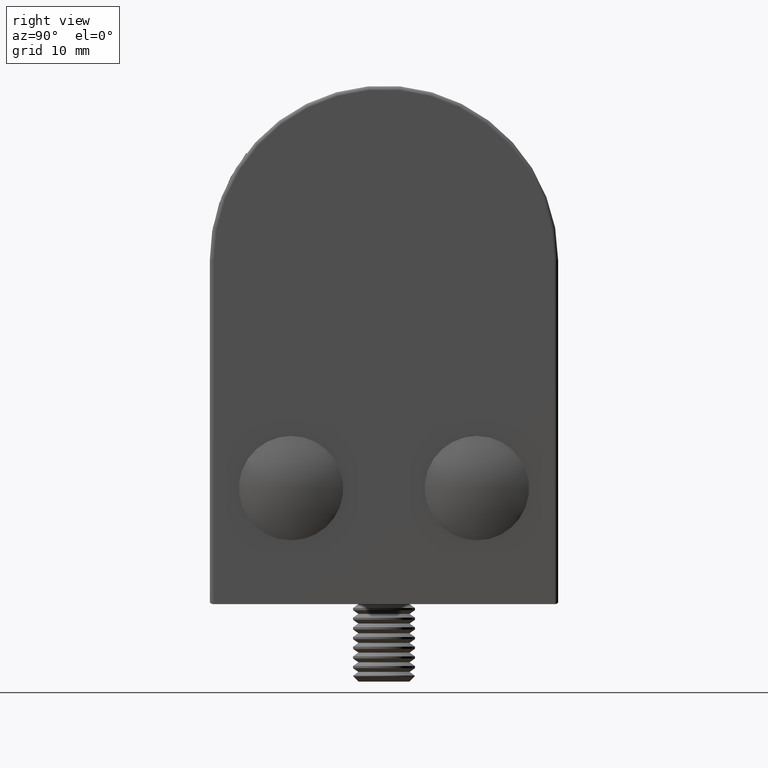
[diagram: clean part render]
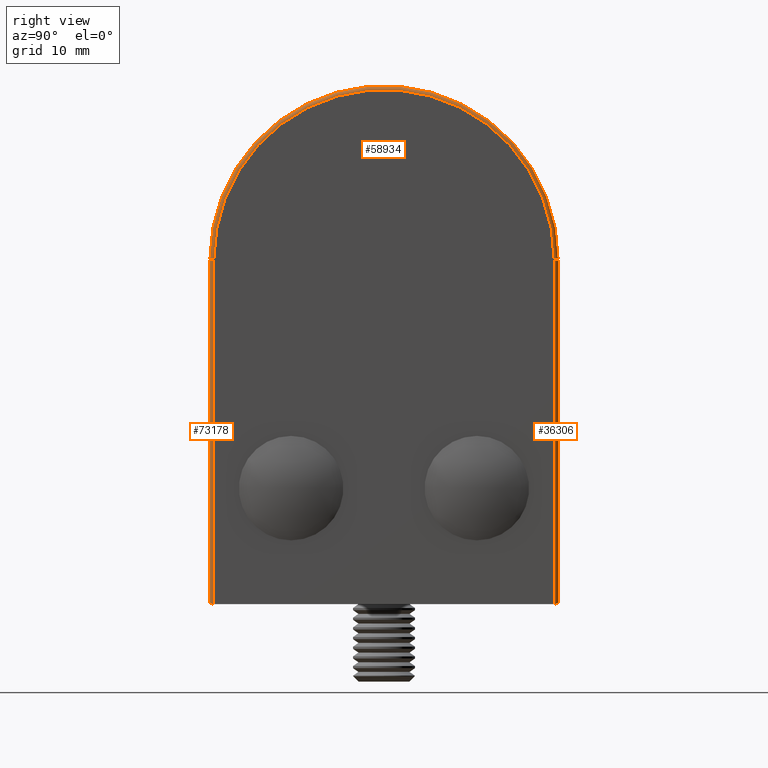
[diagram: same view with one multi-face feature highlighted, each face labeled with its STEP entity id]
A machine part, right view. The highlighted faces form ONE feature: a constant-radius fillet chain: 3 tangent blend faces with common blend radius 0.5 mm. The faces share edges in the B-rep.
Their STEP definitions:
[1] entity #58934 (Torus):
#3281 = DIRECTION ( 'NONE',  ( 0.000000000000000000, 8.881784197001252323E-16, -1.000000000000000000 ) ) ;
#12801 = CARTESIAN_POINT ( 'NONE',  ( 0.5000000000000000000, 21.99999999999998934, 40.49999999999999289 ) ) ;
#15209 = CARTESIAN_POINT ( 'NONE',  ( 0.000000000000000000, -1.387778780781445676E-14, 40.49999999999999289 ) ) ;
#16194 = DIRECTION ( 'NONE',  ( 0.000000000000000000, 0.000000000000000000, -1.000000000000000000 ) ) ;
#17189 = DIRECTION ( 'NONE',  ( 1.000000000000000000, 0.000000000000000000, 0.000000000000000000 ) ) ;
#19416 = CIRCLE ( 'NONE', #55849, 22.00000000000000355 ) ;
#19805 = EDGE_CURVE ( 'NONE', #50431, #64003, #19416, .T. ) ;
#23948 = EDGE_LOOP ( 'NONE', ( #50693, #28853, #25421, #58542 ) ) ;
#25421 = ORIENTED_EDGE ( 'NONE', *, *, #26275, .F. ) ;
#26275 = EDGE_CURVE ( 'NONE', #64003, #74054, #73946, .T. ) ;
#27460 = FACE_OUTER_BOUND ( 'NONE', #23948, .T. ) ;
#27980 = DIRECTION ( 'NONE',  ( -1.000000000000000000, -0.000000000000000000, -0.000000000000000000 ) ) ;
#28853 = ORIENTED_EDGE ( 'NONE', *, *, #41756, .F. ) ;
#30552 = CARTESIAN_POINT ( 'NONE',  ( 0.5000000000000000000, -22.00000000000000000, 40.50000000000000000 ) ) ;
#37223 = CARTESIAN_POINT ( 'NONE',  ( 0.5000000000000004441, 22.50000000000000711, 40.49999999999999289 ) ) ;
#41756 = EDGE_CURVE ( 'NONE', #74054, #67227, #47270, .T. ) ;
#42271 = CARTESIAN_POINT ( 'NONE',  ( 0.5000000000000004441, -1.387778780781445676E-14, 40.49999999999999289 ) ) ;
#43331 = DIRECTION ( 'NONE',  ( 0.000000000000000000, 0.000000000000000000, 1.000000000000000000 ) ) ;
#43956 = DIRECTION ( 'NONE',  ( 0.000000000000000000, 0.000000000000000000, -1.000000000000000000 ) ) ;
#44523 = CARTESIAN_POINT ( 'NONE',  ( 0.5000000000000004441, -1.387778780781445676E-14, 40.49999999999999289 ) ) ;
#47270 = CIRCLE ( 'NONE', #71349, 22.50000000000000355 ) ;
#47629 = CARTESIAN_POINT ( 'NONE',  ( 0.000000000000000000, -22.00000000000001776, 40.50000000000000000 ) ) ;
#50431 = VERTEX_POINT ( 'NONE', #47629 ) ;
#50693 = ORIENTED_EDGE ( 'NONE', *, *, #66517, .T. ) ;
#50898 = DIRECTION ( 'NONE',  ( 1.000000000000000000, 0.000000000000000000, 0.000000000000000000 ) ) ;
#51863 = AXIS2_PLACEMENT_3D ( 'NONE', #42271, #54307, #16194 ) ;
#54307 = DIRECTION ( 'NONE',  ( 1.000000000000000000, 0.000000000000000000, 0.000000000000000000 ) ) ;
#55849 = AXIS2_PLACEMENT_3D ( 'NONE', #15209, #27980, #3281 ) ;
#58542 = ORIENTED_EDGE ( 'NONE', *, *, #19805, .F. ) ;
#58934 = ADVANCED_FACE ( 'NONE', ( #27460 ), #69235, .T. ) ;
#60999 = CIRCLE ( 'NONE', #69124, 0.5000000000000000000 ) ;
#61312 = CARTESIAN_POINT ( 'NONE',  ( 0.000000000000000000, 21.99999999999998934, 40.49999999999999289 ) ) ;
#63871 = DIRECTION ( 'NONE',  ( -1.000000000000000000, 0.000000000000000000, 0.000000000000000000 ) ) ;
#64003 = VERTEX_POINT ( 'NONE', #61312 ) ;
#66517 = EDGE_CURVE ( 'NONE', #50431, #67227, #60999, .T. ) ;
#66594 = AXIS2_PLACEMENT_3D ( 'NONE', #12801, #76325, #63871 ) ;
#67227 = VERTEX_POINT ( 'NONE', #67303 ) ;
#67303 = CARTESIAN_POINT ( 'NONE',  ( 0.5000000000000004441, -22.50000000000001776, 40.50000000000000000 ) ) ;
#69124 = AXIS2_PLACEMENT_3D ( 'NONE', #30552, #43331, #17189 ) ;
#69235 = TOROIDAL_SURFACE ( 'NONE', #51863, 22.00000000000000355, 0.5000000000000000000 ) ;
#71349 = AXIS2_PLACEMENT_3D ( 'NONE', #44523, #50898, #43956 ) ;
#73946 = CIRCLE ( 'NONE', #66594, 0.5000000000000000000 ) ;
#74054 = VERTEX_POINT ( 'NONE', #37223 ) ;
#76325 = DIRECTION ( 'NONE',  ( 0.000000000000000000, 0.000000000000000000, -1.000000000000000000 ) ) ;
[2] entity #73178 (Cylinder):
#3568 = VECTOR ( 'NONE', #23610, 1000.000000000000000 ) ;
#3742 = CARTESIAN_POINT ( 'NONE',  ( 4.336808689942017736E-16, 21.99999999999998224, -3.996176187792348067 ) ) ;
#4706 = ORIENTED_EDGE ( 'NONE', *, *, #26275, .T. ) ;
#4941 = EDGE_CURVE ( 'NONE', #18991, #17120, #80340, .T. ) ;
#8092 = CARTESIAN_POINT ( 'NONE',  ( 0.06351769917607848204, 22.27632803924383254, -3.959622569378996371 ) ) ;
#11291 = VECTOR ( 'NONE', #48020, 1000.000000000000000 ) ;
#12801 = CARTESIAN_POINT ( 'NONE',  ( 0.5000000000000000000, 21.99999999999998934, 40.49999999999999289 ) ) ;
#12914 = AXIS2_PLACEMENT_3D ( 'NONE', #73443, #17137, #54688 ) ;
#16860 = EDGE_CURVE ( 'NONE', #17120, #74054, #61047, .T. ) ;
#17120 = VERTEX_POINT ( 'NONE', #30452 ) ;
#17137 = DIRECTION ( 'NONE',  ( -0.000000000000000000, 1.713307136767217096E-16, 1.000000000000000000 ) ) ;
#18991 = VERTEX_POINT ( 'NONE', #3742 ) ;
#19055 = FACE_OUTER_BOUND ( 'NONE', #32922, .T. ) ;
#20303 = ORIENTED_EDGE ( 'NONE', *, *, #64894, .F. ) ;
#22103 = CARTESIAN_POINT ( 'NONE',  ( 0.5000000000000004441, 22.50000000000000000, 0.000000000000000000 ) ) ;
#23610 = DIRECTION ( 'NONE',  ( 0.000000000000000000, -1.713307136767217096E-16, -1.000000000000000000 ) ) ;
#26275 = EDGE_CURVE ( 'NONE', #64003, #74054, #73946, .T. ) ;
#26532 = CARTESIAN_POINT ( 'NONE',  ( -4.310974185050759998E-15, 22.14203512808349927, -3.996176187792350731 ) ) ;
#30452 = CARTESIAN_POINT ( 'NONE',  ( 0.5000000000000004441, 22.50000000000001066, -3.715694637460208227 ) ) ;
#32922 = EDGE_LOOP ( 'NONE', ( #35796, #20303, #4706, #77477 ) ) ;
#35796 = ORIENTED_EDGE ( 'NONE', *, *, #4941, .F. ) ;
#36887 = CYLINDRICAL_SURFACE ( 'NONE', #12914, 0.5000000000000004441 ) ;
#37223 = CARTESIAN_POINT ( 'NONE',  ( 0.5000000000000004441, 22.50000000000000711, 40.49999999999999289 ) ) ;
#38712 = CARTESIAN_POINT ( 'NONE',  ( 0.5000000000000004441, 22.50000000000001066, -3.715694637460208227 ) ) ;
#38961 = CARTESIAN_POINT ( 'NONE',  ( 0.2532153795702816734, 22.45384064970453508, -3.852343890759658329 ) ) ;
#48020 = DIRECTION ( 'NONE',  ( -0.000000000000000000, 1.713307136767217096E-16, 1.000000000000000000 ) ) ;
#48926 = CARTESIAN_POINT ( 'NONE',  ( 0.000000000000000000, 22.00000000000000711, 40.49999999999998579 ) ) ;
#54688 = DIRECTION ( 'NONE',  ( 0.000000000000000000, -1.000000000000000000, 1.713307136767215617E-16 ) ) ;
#61047 = LINE ( 'NONE', #22103, #11291 ) ;
#61169 = LINE ( 'NONE', #48926, #3568 ) ;
#61312 = CARTESIAN_POINT ( 'NONE',  ( 0.000000000000000000, 21.99999999999998934, 40.49999999999999289 ) ) ;
#63871 = DIRECTION ( 'NONE',  ( -1.000000000000000000, 0.000000000000000000, 0.000000000000000000 ) ) ;
#64003 = VERTEX_POINT ( 'NONE', #61312 ) ;
#64799 = CARTESIAN_POINT ( 'NONE',  ( 4.336808689942017736E-16, 21.99999999999998224, -3.996176187792348067 ) ) ;
#64894 = EDGE_CURVE ( 'NONE', #64003, #18991, #61169, .T. ) ;
#66594 = AXIS2_PLACEMENT_3D ( 'NONE', #12801, #76325, #63871 ) ;
#73178 = ADVANCED_FACE ( 'NONE', ( #19055 ), #36887, .T. ) ;
#73443 = CARTESIAN_POINT ( 'NONE',  ( 0.5000000000000004441, 22.00000000000000000, 8.566535683836085482E-17 ) ) ;
#73946 = CIRCLE ( 'NONE', #66594, 0.5000000000000000000 ) ;
#74054 = VERTEX_POINT ( 'NONE', #37223 ) ;
#76325 = DIRECTION ( 'NONE',  ( 0.000000000000000000, 0.000000000000000000, -1.000000000000000000 ) ) ;
#77257 = CARTESIAN_POINT ( 'NONE',  ( 0.3758805443993050166, 22.49999999999999645, -3.783777837738302008 ) ) ;
#77477 = ORIENTED_EDGE ( 'NONE', *, *, #16860, .F. ) ;
#80340 = B_SPLINE_CURVE_WITH_KNOTS ( 'NONE', 3,
 ( #64799, #26532, #8092, #38961, #77257, #38712 ),
 .UNSPECIFIED., .F., .F.,
 ( 4, 2, 4 ),
 ( 0.000000000000000000, 0.0004196310551618273165, 0.0008392621103236540909 ),
 .UNSPECIFIED. ) ;
[3] entity #36306 (Cylinder):
#1982 = CARTESIAN_POINT ( 'NONE',  ( 4.573977915173220845E-16, -22.07127594295869599, -3.996176187792345846 ) ) ;
#4095 = ORIENTED_EDGE ( 'NONE', *, *, #44860, .F. ) ;
#9123 = CARTESIAN_POINT ( 'NONE',  ( 0.5000000000000004441, -22.50000000000001776, -3.715694637460208227 ) ) ;
#9542 = ORIENTED_EDGE ( 'NONE', *, *, #59273, .F. ) ;
#13840 = CARTESIAN_POINT ( 'NONE',  ( 0.5000000000000004441, -22.50000000000000000, 0.000000000000000000 ) ) ;
#14539 = ORIENTED_EDGE ( 'NONE', *, *, #30421, .F. ) ;
#14597 = VECTOR ( 'NONE', #16789, 1000.000000000000000 ) ;
#14975 = CARTESIAN_POINT ( 'NONE',  ( 0.5000000000000004441, -22.50000000000001776, -3.715694637460208227 ) ) ;
#15842 = B_SPLINE_CURVE_WITH_KNOTS ( 'NONE', 3,
 ( #14975, #26936, #77941, #51996, #71093, #33352, #1982, #71365 ),
 .UNSPECIFIED., .F., .F.,
 ( 4, 2, 2, 4 ),
 ( 2.717002856672028864E-18, 0.0004196663507753661273, 0.0006294995261630476459, 0.0008393327015507292188 ),
 .UNSPECIFIED. ) ;
#16789 = DIRECTION ( 'NONE',  ( -0.000000000000000000, -0.000000000000000000, 1.000000000000000000 ) ) ;
#17189 = DIRECTION ( 'NONE',  ( 1.000000000000000000, 0.000000000000000000, 0.000000000000000000 ) ) ;
#26936 = CARTESIAN_POINT ( 'NONE',  ( 0.3756290162402788346, -22.50000000000000711, -3.783915808388782498 ) ) ;
#30421 = EDGE_CURVE ( 'NONE', #74024, #50431, #47491, .T. ) ;
#30552 = CARTESIAN_POINT ( 'NONE',  ( 0.5000000000000000000, -22.00000000000000000, 40.50000000000000000 ) ) ;
#31049 = VECTOR ( 'NONE', #77605, 1000.000000000000000 ) ;
#31810 = VERTEX_POINT ( 'NONE', #9123 ) ;
#33352 = CARTESIAN_POINT ( 'NONE',  ( 0.01508102789994872871, -22.14022227330118753, -3.987512339409040152 ) ) ;
#36306 = ADVANCED_FACE ( 'NONE', ( #69741 ), #45969, .T. ) ;
#43150 = DIRECTION ( 'NONE',  ( 0.000000000000000000, 0.000000000000000000, -1.000000000000000000 ) ) ;
#43331 = DIRECTION ( 'NONE',  ( 0.000000000000000000, 0.000000000000000000, 1.000000000000000000 ) ) ;
#43664 = CARTESIAN_POINT ( 'NONE',  ( 0.000000000000000000, -22.00000000000001776, -3.996176187792348067 ) ) ;
#44860 = EDGE_CURVE ( 'NONE', #67227, #31810, #64817, .T. ) ;
#45969 = CYLINDRICAL_SURFACE ( 'NONE', #74340, 0.5000000000000000000 ) ;
#47158 = EDGE_LOOP ( 'NONE', ( #9542, #4095, #54787, #14539 ) ) ;
#47491 = LINE ( 'NONE', #67557, #14597 ) ;
#47629 = CARTESIAN_POINT ( 'NONE',  ( 0.000000000000000000, -22.00000000000001776, 40.50000000000000000 ) ) ;
#48504 = CARTESIAN_POINT ( 'NONE',  ( 0.5000000000000004441, -22.00000000000000000, 0.000000000000000000 ) ) ;
#50431 = VERTEX_POINT ( 'NONE', #47629 ) ;
#51996 = CARTESIAN_POINT ( 'NONE',  ( 0.1108275336879711026, -22.32066725432315124, -3.932867031519152512 ) ) ;
#54787 = ORIENTED_EDGE ( 'NONE', *, *, #66517, .F. ) ;
#59273 = EDGE_CURVE ( 'NONE', #31810, #74024, #15842, .T. ) ;
#60999 = CIRCLE ( 'NONE', #69124, 0.5000000000000000000 ) ;
#64817 = LINE ( 'NONE', #13840, #31049 ) ;
#66517 = EDGE_CURVE ( 'NONE', #50431, #67227, #60999, .T. ) ;
#67227 = VERTEX_POINT ( 'NONE', #67303 ) ;
#67303 = CARTESIAN_POINT ( 'NONE',  ( 0.5000000000000004441, -22.50000000000001776, 40.50000000000000000 ) ) ;
#67557 = CARTESIAN_POINT ( 'NONE',  ( 0.000000000000000000, -22.00000000000000000, 40.49999999999999289 ) ) ;
#68104 = DIRECTION ( 'NONE',  ( -1.000000000000000000, 0.000000000000000000, 0.000000000000000000 ) ) ;
#69124 = AXIS2_PLACEMENT_3D ( 'NONE', #30552, #43331, #17189 ) ;
#69741 = FACE_OUTER_BOUND ( 'NONE', #47158, .T. ) ;
#71093 = CARTESIAN_POINT ( 'NONE',  ( 0.07154430850407270115, -22.26689776293005352, -3.955253048406419225 ) ) ;
#71365 = CARTESIAN_POINT ( 'NONE',  ( 0.000000000000000000, -22.00000000000001776, -3.996176187792348067 ) ) ;
#74024 = VERTEX_POINT ( 'NONE', #43664 ) ;
#74340 = AXIS2_PLACEMENT_3D ( 'NONE', #48504, #43150, #68104 ) ;
#77605 = DIRECTION ( 'NONE',  ( 0.000000000000000000, 0.000000000000000000, -1.000000000000000000 ) ) ;
#77941 = CARTESIAN_POINT ( 'NONE',  ( 0.2542817843504636688, -22.45470137961101642, -3.851742156959912400 ) ) ;